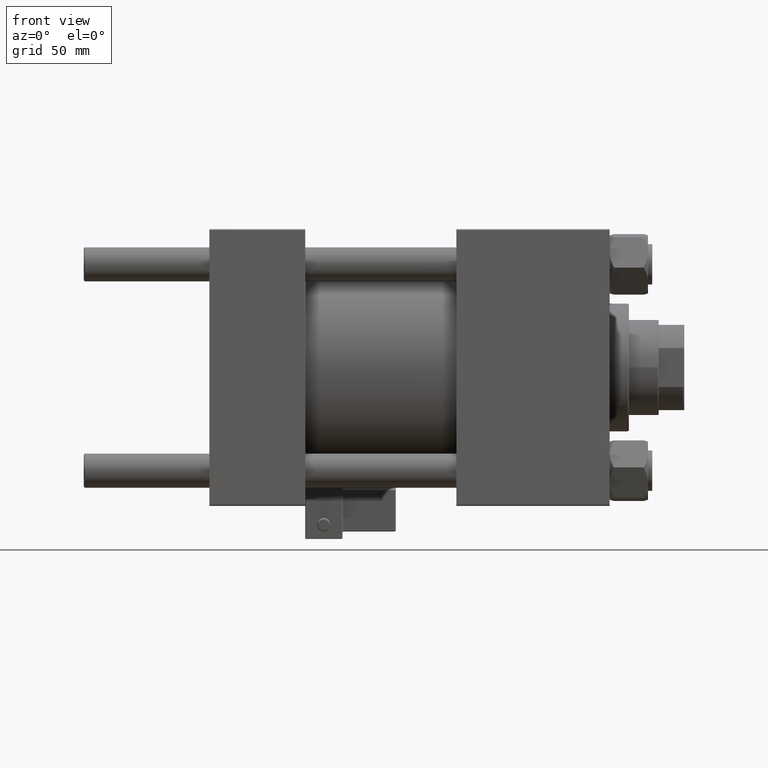
[diagram: clean part render]
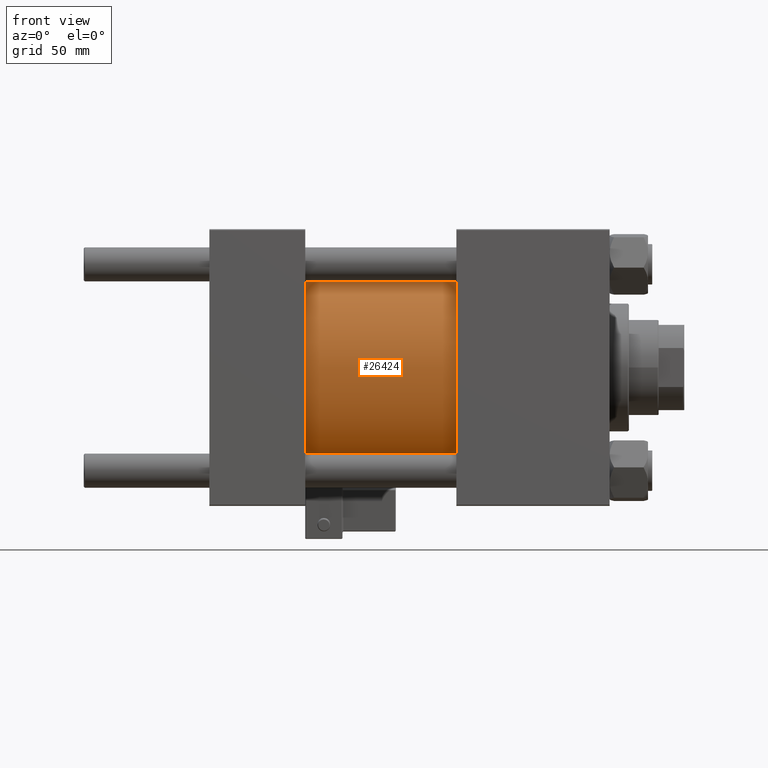
[diagram: same view with one face highlighted and labeled with its STEP entity id]
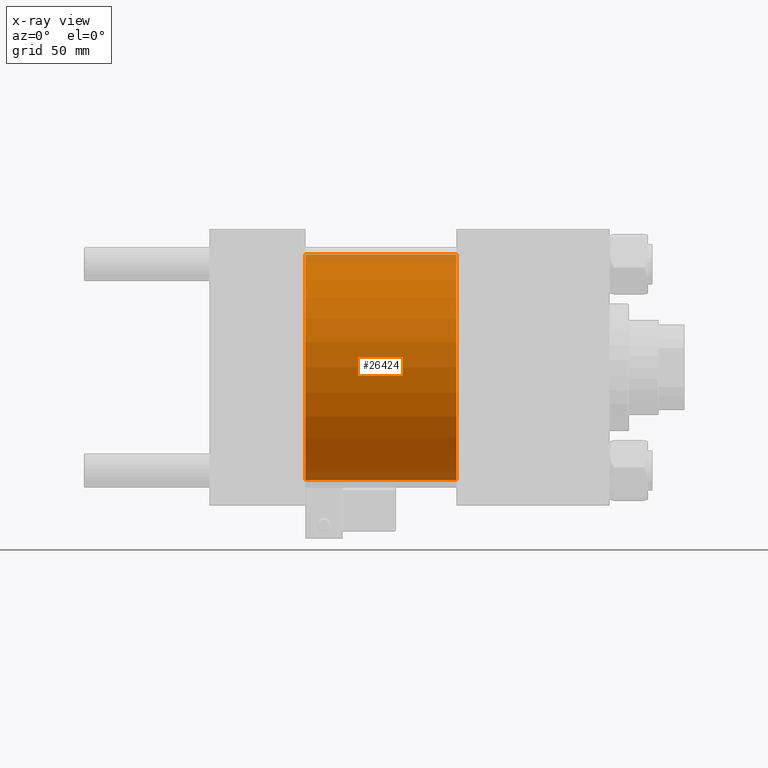
[diagram: x-ray of the same camera — body ghosted, the highlighted face saturated]
A machine part, front view. The second image highlights one B-rep face of the part: STEP entity #26424.
The next image is the same camera in x-ray: the body ghosted, the highlighted face saturated — about 7% of this face is hidden behind the body in this view.
In plain terms, the highlighted cylindrical surface (partial cylindrical patch) has radius 53 mm, axis along (-1, -0, -0).
Its self-contained STEP definition (entity closure, byte-faithful):
#66 = EDGE_CURVE ( 'NONE', #19327, #50026, #32072, .T. ) ;
#828 = CARTESIAN_POINT ( 'NONE',  ( 115.9999999999999858, 0.000000000000000000, 53.00000000000000711 ) ) ;
#1761 = CARTESIAN_POINT ( 'NONE',  ( 115.9999999999999858, 6.490628035480973107E-15, -53.00000000000000711 ) ) ;
#2391 = AXIS2_PLACEMENT_3D ( 'NONE', #23339, #51224, #19625 ) ;
#2735 = VERTEX_POINT ( 'NONE', #28941 ) ;
#5083 = AXIS2_PLACEMENT_3D ( 'NONE', #44789, #20125, #12682 ) ;
#5717 = DIRECTION ( 'NONE',  ( -1.000000000000000000, -0.000000000000000000, -0.000000000000000000 ) ) ;
#8875 = FACE_OUTER_BOUND ( 'NONE', #42631, .T. ) ;
#9617 = EDGE_CURVE ( 'NONE', #50026, #2735, #35460, .T. ) ;
#10794 = DIRECTION ( 'NONE',  ( -1.000000000000000000, -0.000000000000000000, -0.000000000000000000 ) ) ;
#11443 = VECTOR ( 'NONE', #5717, 1000.000000000000000 ) ;
#12074 = CARTESIAN_POINT ( 'NONE',  ( 115.9999999999999858, 0.000000000000000000, 0.000000000000000000 ) ) ;
#12682 = DIRECTION ( 'NONE',  ( 0.000000000000000000, 0.000000000000000000, 1.000000000000000000 ) ) ;
#13533 = EDGE_CURVE ( 'NONE', #38316, #2735, #29694, .T. ) ;
#15842 = CARTESIAN_POINT ( 'NONE',  ( 115.9999999999999858, 6.490628035480973107E-15, -53.00000000000000711 ) ) ;
#16108 = ORIENTED_EDGE ( 'NONE', *, *, #66, .F. ) ;
#16587 = DIRECTION ( 'NONE',  ( 0.000000000000000000, 0.000000000000000000, 1.000000000000000000 ) ) ;
#16851 = DIRECTION ( 'NONE',  ( -1.000000000000000000, -0.000000000000000000, -0.000000000000000000 ) ) ;
#17787 = ORIENTED_EDGE ( 'NONE', *, *, #9617, .F. ) ;
#19327 = VERTEX_POINT ( 'NONE', #828 ) ;
#19625 = DIRECTION ( 'NONE',  ( 0.000000000000000000, 0.000000000000000000, -1.000000000000000000 ) ) ;
#20125 = DIRECTION ( 'NONE',  ( 1.000000000000000000, -0.000000000000000000, 0.000000000000000000 ) ) ;
#23339 = CARTESIAN_POINT ( 'NONE',  ( 115.9999999999999858, 0.000000000000000000, 0.000000000000000000 ) ) ;
#24936 = AXIS2_PLACEMENT_3D ( 'NONE', #12074, #16851, #16587 ) ;
#26424 = ADVANCED_FACE ( 'NONE', ( #8875 ), #37002, .T. ) ;
#28941 = CARTESIAN_POINT ( 'NONE',  ( 45.00000000000000000, 6.490628035480973107E-15, -53.00000000000000711 ) ) ;
#29272 = EDGE_CURVE ( 'NONE', #19327, #38316, #31173, .T. ) ;
#29694 = CIRCLE ( 'NONE', #5083, 53.00000000000000711 ) ;
#31173 = LINE ( 'NONE', #47374, #11443 ) ;
#32072 = CIRCLE ( 'NONE', #2391, 53.00000000000000711 ) ;
#32101 = ORIENTED_EDGE ( 'NONE', *, *, #29272, .T. ) ;
#35460 = LINE ( 'NONE', #15842, #39688 ) ;
#37002 = CYLINDRICAL_SURFACE ( 'NONE', #24936, 53.00000000000000711 ) ;
#38316 = VERTEX_POINT ( 'NONE', #49097 ) ;
#39688 = VECTOR ( 'NONE', #10794, 1000.000000000000000 ) ;
#42631 = EDGE_LOOP ( 'NONE', ( #17787, #16108, #32101, #51168 ) ) ;
#44789 = CARTESIAN_POINT ( 'NONE',  ( 45.00000000000000000, 0.000000000000000000, 0.000000000000000000 ) ) ;
#47374 = CARTESIAN_POINT ( 'NONE',  ( 115.9999999999999858, 0.000000000000000000, 53.00000000000000711 ) ) ;
#49097 = CARTESIAN_POINT ( 'NONE',  ( 45.00000000000000000, 0.000000000000000000, 53.00000000000000711 ) ) ;
#50026 = VERTEX_POINT ( 'NONE', #1761 ) ;
#51168 = ORIENTED_EDGE ( 'NONE', *, *, #13533, .T. ) ;
#51224 = DIRECTION ( 'NONE',  ( 1.000000000000000000, 0.000000000000000000, 0.000000000000000000 ) ) ;